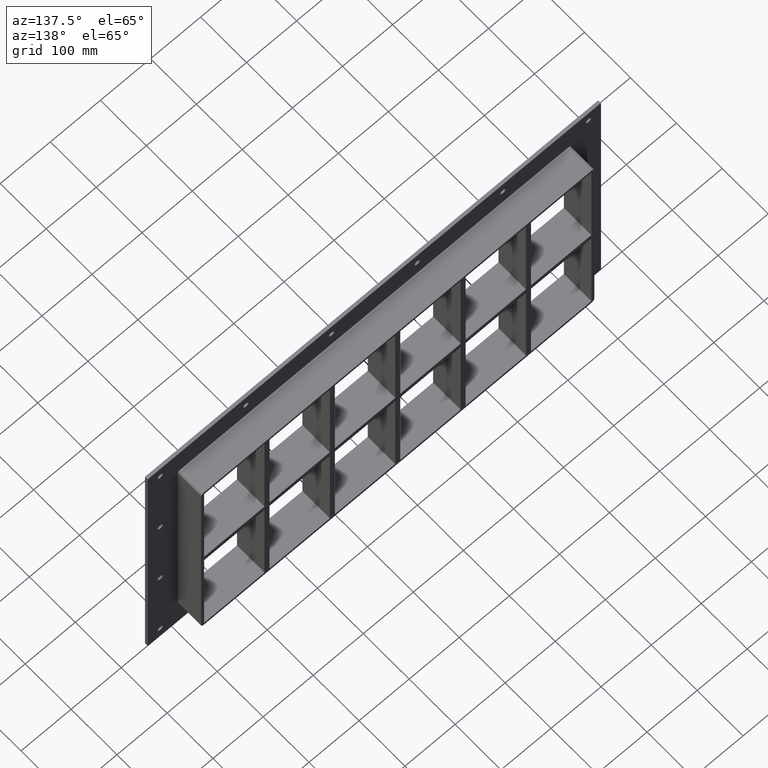
[diagram: clean part render]
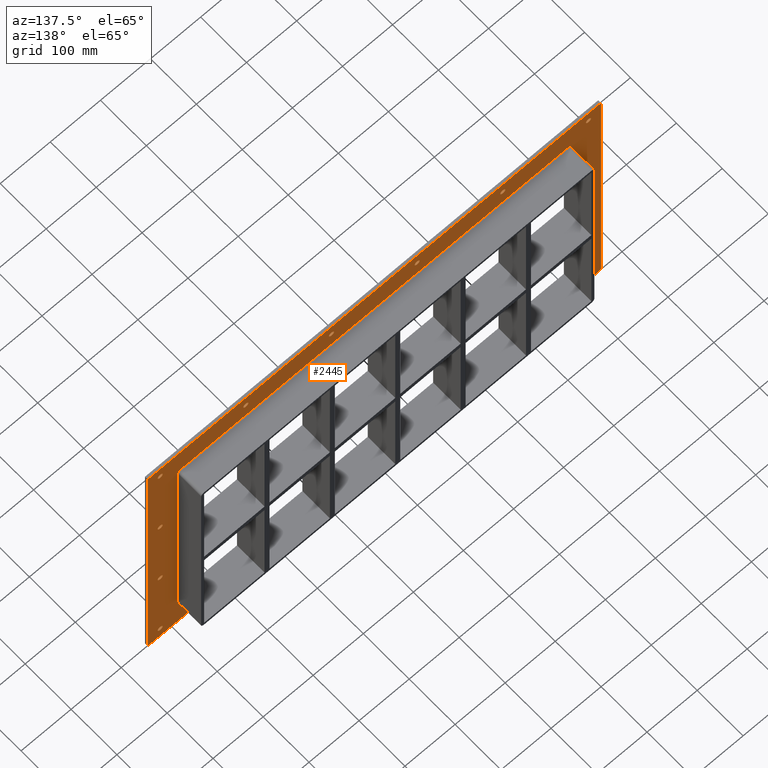
[diagram: same view with one face highlighted and labeled with its STEP entity id]
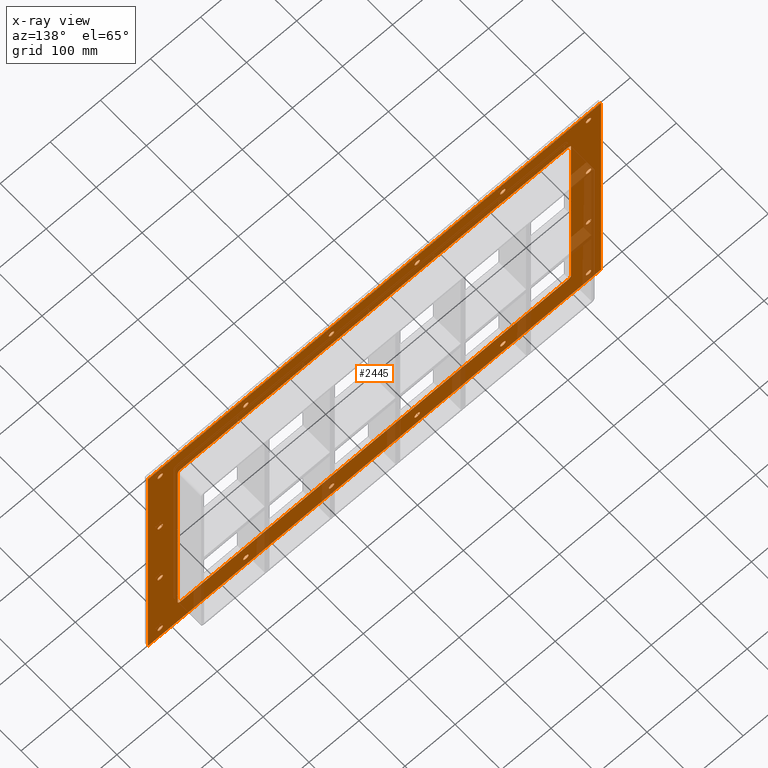
[diagram: x-ray of the same camera — body ghosted, the highlighted face saturated]
A machine part, auxiliary view. The second image highlights one B-rep face of the part: STEP entity #2445.
The next image is the same camera in x-ray: the body ghosted, the highlighted face saturated — about 13% of this face is hidden behind the body in this view.
In plain terms, the highlighted planar face has unit normal (0, 1, 0).
Its self-contained STEP definition (entity closure, byte-faithful):
#73=CARTESIAN_POINT('',(-432.75000000000011,5.999999999999943,-265.00000000000006));
#74=VERTEX_POINT('',#73);
#75=CARTESIAN_POINT('',(-427.50000000000011,5.999999999999943,-265.00000000000006));
#76=DIRECTION('',(0.0,-1.0,0.0));
#77=DIRECTION('',(1.0,0.0,0.0));
#78=AXIS2_PLACEMENT_3D('',#75,#76,#77);
#79=CIRCLE('',#78,5.25);
#80=EDGE_CURVE('',#74,#74,#79,.T.);
#101=CARTESIAN_POINT('',(422.24999999999989,5.999999999999943,-88.399999999999963));
#102=VERTEX_POINT('',#101);
#103=CARTESIAN_POINT('',(427.49999999999989,5.999999999999943,-88.399999999999963));
#104=DIRECTION('',(0.0,-1.0,0.0));
#105=DIRECTION('',(1.0,0.0,0.0));
#106=AXIS2_PLACEMENT_3D('',#103,#104,#105);
#107=CIRCLE('',#106,5.25);
#108=EDGE_CURVE('',#102,#102,#107,.T.);
#129=CARTESIAN_POINT('',(-432.75000000000011,5.999999999999943,-88.399999999999963));
#130=VERTEX_POINT('',#129);
#131=CARTESIAN_POINT('',(-427.50000000000011,5.999999999999943,-88.399999999999963));
#132=DIRECTION('',(0.0,-1.0,0.0));
#133=DIRECTION('',(1.0,0.0,0.0));
#134=AXIS2_PLACEMENT_3D('',#131,#132,#133);
#135=CIRCLE('',#134,5.25);
#136=EDGE_CURVE('',#130,#130,#135,.T.);
#157=CARTESIAN_POINT('',(422.24999999999989,5.999999999999943,88.200000000000045));
#158=VERTEX_POINT('',#157);
#159=CARTESIAN_POINT('',(427.49999999999989,5.999999999999943,88.200000000000045));
#160=DIRECTION('',(0.0,-1.0,0.0));
#161=DIRECTION('',(1.0,0.0,0.0));
#162=AXIS2_PLACEMENT_3D('',#159,#160,#161);
#163=CIRCLE('',#162,5.25);
#164=EDGE_CURVE('',#158,#158,#163,.T.);
#185=CARTESIAN_POINT('',(-432.75000000000011,5.999999999999943,88.200000000000045));
#186=VERTEX_POINT('',#185);
#187=CARTESIAN_POINT('',(-427.50000000000011,5.999999999999943,88.200000000000045));
#188=DIRECTION('',(0.0,-1.0,0.0));
#189=DIRECTION('',(1.0,0.0,0.0));
#190=AXIS2_PLACEMENT_3D('',#187,#188,#189);
#191=CIRCLE('',#190,5.25);
#192=EDGE_CURVE('',#186,#186,#191,.T.);
#213=CARTESIAN_POINT('',(-261.75000000000017,5.999999999999943,264.80000000000007));
#214=VERTEX_POINT('',#213);
#215=CARTESIAN_POINT('',(-256.50000000000023,5.999999999999943,264.80000000000007));
#216=DIRECTION('',(0.0,-1.0,0.0));
#217=DIRECTION('',(1.0,0.0,0.0));
#218=AXIS2_PLACEMENT_3D('',#215,#216,#217);
#219=CIRCLE('',#218,5.25);
#220=EDGE_CURVE('',#214,#214,#219,.T.);
#241=CARTESIAN_POINT('',(-261.75000000000023,5.999999999999943,-265.0));
#242=VERTEX_POINT('',#241);
#243=CARTESIAN_POINT('',(-256.50000000000028,5.999999999999943,-265.0));
#244=DIRECTION('',(0.0,-1.0,0.0));
#245=DIRECTION('',(1.0,0.0,0.0));
#246=AXIS2_PLACEMENT_3D('',#243,#244,#245);
#247=CIRCLE('',#246,5.25);
#248=EDGE_CURVE('',#242,#242,#247,.T.);
#269=CARTESIAN_POINT('',(-90.750000000000171,5.999999999999943,264.80000000000007));
#270=VERTEX_POINT('',#269);
#271=CARTESIAN_POINT('',(-85.500000000000185,5.999999999999943,264.80000000000007));
#272=DIRECTION('',(0.0,-1.0,0.0));
#273=DIRECTION('',(1.0,0.0,0.0));
#274=AXIS2_PLACEMENT_3D('',#271,#272,#273);
#275=CIRCLE('',#274,5.25);
#276=EDGE_CURVE('',#270,#270,#275,.T.);
#297=CARTESIAN_POINT('',(-90.750000000000242,5.999999999999943,-265.0));
#298=VERTEX_POINT('',#297);
#299=CARTESIAN_POINT('',(-85.500000000000256,5.999999999999943,-265.0));
#300=DIRECTION('',(0.0,-1.0,0.0));
#301=DIRECTION('',(1.0,0.0,0.0));
#302=AXIS2_PLACEMENT_3D('',#299,#300,#301);
#303=CIRCLE('',#302,5.25);
#304=EDGE_CURVE('',#298,#298,#303,.T.);
#325=CARTESIAN_POINT('',(80.249999999999844,5.999999999999943,264.80000000000007));
#326=VERTEX_POINT('',#325);
#327=CARTESIAN_POINT('',(85.499999999999829,5.999999999999943,264.80000000000007));
#328=DIRECTION('',(0.0,-1.0,0.0));
#329=DIRECTION('',(1.0,0.0,0.0));
#330=AXIS2_PLACEMENT_3D('',#327,#328,#329);
#331=CIRCLE('',#330,5.25);
#332=EDGE_CURVE('',#326,#326,#331,.T.);
#353=CARTESIAN_POINT('',(80.249999999999773,5.999999999999943,-265.0));
#354=VERTEX_POINT('',#353);
#355=CARTESIAN_POINT('',(85.499999999999758,5.999999999999943,-265.0));
#356=DIRECTION('',(0.0,-1.0,0.0));
#357=DIRECTION('',(1.0,0.0,0.0));
#358=AXIS2_PLACEMENT_3D('',#355,#356,#357);
#359=CIRCLE('',#358,5.25);
#360=EDGE_CURVE('',#354,#354,#359,.T.);
#381=CARTESIAN_POINT('',(251.24999999999986,5.999999999999943,264.80000000000007));
#382=VERTEX_POINT('',#381);
#383=CARTESIAN_POINT('',(256.49999999999983,5.999999999999943,264.80000000000007));
#384=DIRECTION('',(0.0,-1.0,0.0));
#385=DIRECTION('',(1.0,0.0,0.0));
#386=AXIS2_PLACEMENT_3D('',#383,#384,#385);
#387=CIRCLE('',#386,5.25);
#388=EDGE_CURVE('',#382,#382,#387,.T.);
#409=CARTESIAN_POINT('',(251.24999999999977,5.999999999999943,-265.0));
#410=VERTEX_POINT('',#409);
#411=CARTESIAN_POINT('',(256.49999999999977,5.999999999999943,-265.0));
#412=DIRECTION('',(0.0,-1.0,0.0));
#413=DIRECTION('',(1.0,0.0,0.0));
#414=AXIS2_PLACEMENT_3D('',#411,#412,#413);
#415=CIRCLE('',#414,5.25);
#416=EDGE_CURVE('',#410,#410,#415,.T.);
#437=CARTESIAN_POINT('',(422.24999999999977,5.999999999999943,-265.0));
#438=VERTEX_POINT('',#437);
#439=CARTESIAN_POINT('',(427.49999999999977,5.999999999999943,-265.0));
#440=DIRECTION('',(0.0,-1.0,0.0));
#441=DIRECTION('',(1.0,0.0,0.0));
#442=AXIS2_PLACEMENT_3D('',#439,#440,#441);
#443=CIRCLE('',#442,5.25);
#444=EDGE_CURVE('',#438,#438,#443,.T.);
#465=CARTESIAN_POINT('',(-432.75000000000011,5.999999999999943,264.80000000000007));
#466=VERTEX_POINT('',#465);
#467=CARTESIAN_POINT('',(-427.50000000000011,5.999999999999943,264.80000000000007));
#468=DIRECTION('',(0.0,-1.0,0.0));
#469=DIRECTION('',(1.0,0.0,0.0));
#470=AXIS2_PLACEMENT_3D('',#467,#468,#469);
#471=CIRCLE('',#470,5.25);
#472=EDGE_CURVE('',#466,#466,#471,.T.);
#493=CARTESIAN_POINT('',(422.24999999999989,5.999999999999943,264.80000000000007));
#494=VERTEX_POINT('',#493);
#495=CARTESIAN_POINT('',(427.49999999999989,5.999999999999943,264.80000000000007));
#496=DIRECTION('',(0.0,-1.0,0.0));
#497=DIRECTION('',(1.0,0.0,0.0));
#498=AXIS2_PLACEMENT_3D('',#495,#496,#497);
#499=CIRCLE('',#498,5.25);
#500=EDGE_CURVE('',#494,#494,#499,.T.);
#2288=CARTESIAN_POINT('',(-4.593408E-014,6.000000000000001,6.937959E-015));
#2289=DIRECTION('',(0.0,1.0,0.0));
#2290=DIRECTION('',(0.0,0.0,1.0));
#2291=AXIS2_PLACEMENT_3D('',#2288,#2289,#2290);
#2292=PLANE('',#2291);
#2293=CARTESIAN_POINT('',(-452.50000000000011,6.000000000000001,290.00000000000006));
#2294=VERTEX_POINT('',#2293);
#2295=CARTESIAN_POINT('',(452.50000000000011,6.000000000000001,290.00000000000006));
#2296=VERTEX_POINT('',#2295);
#2297=CARTESIAN_POINT('',(-452.50000000000011,6.000000000000001,290.00000000000006));
#2298=DIRECTION('',(1.0,0.0,0.0));
#2299=VECTOR('',#2298,905.00000000000023);
#2300=LINE('',#2297,#2299);
#2301=EDGE_CURVE('',#2294,#2296,#2300,.T.);
#2302=ORIENTED_EDGE('',*,*,#2301,.T.);
#2303=CARTESIAN_POINT('',(452.50000000000011,6.000000000000001,-290.00000000000006));
#2304=VERTEX_POINT('',#2303);
#2305=CARTESIAN_POINT('',(452.50000000000006,6.000000000000001,290.00000000000006));
#2306=DIRECTION('',(0.0,0.0,-1.0));
#2307=VECTOR('',#2306,580.00000000000011);
#2308=LINE('',#2305,#2307);
#2309=EDGE_CURVE('',#2296,#2304,#2308,.T.);
#2310=ORIENTED_EDGE('',*,*,#2309,.T.);
#2311=CARTESIAN_POINT('',(-452.50000000000011,6.000000000000001,-290.00000000000006));
#2312=VERTEX_POINT('',#2311);
#2313=CARTESIAN_POINT('',(452.50000000000006,6.000000000000001,-290.00000000000006));
#2314=DIRECTION('',(-1.0,0.0,0.0));
#2315=VECTOR('',#2314,905.00000000000023);
#2316=LINE('',#2313,#2315);
#2317=EDGE_CURVE('',#2304,#2312,#2316,.T.);
#2318=ORIENTED_EDGE('',*,*,#2317,.T.);
#2319=CARTESIAN_POINT('',(-452.50000000000011,6.000000000000001,-290.00000000000006));
#2320=DIRECTION('',(0.0,0.0,1.0));
#2321=VECTOR('',#2320,580.00000000000011);
#2322=LINE('',#2319,#2321);
#2323=EDGE_CURVE('',#2312,#2294,#2322,.T.);
#2324=ORIENTED_EDGE('',*,*,#2323,.T.);
#2325=EDGE_LOOP('',(#2302,#2310,#2318,#2324));
#2326=FACE_OUTER_BOUND('',#2325,.T.);
#2327=ORIENTED_EDGE('',*,*,#80,.T.);
#2328=EDGE_LOOP('',(#2327));
#2329=FACE_BOUND('',#2328,.T.);
#2330=ORIENTED_EDGE('',*,*,#108,.T.);
#2331=EDGE_LOOP('',(#2330));
#2332=FACE_BOUND('',#2331,.T.);
#2333=ORIENTED_EDGE('',*,*,#136,.T.);
#2334=EDGE_LOOP('',(#2333));
#2335=FACE_BOUND('',#2334,.T.);
#2336=ORIENTED_EDGE('',*,*,#164,.T.);
#2337=EDGE_LOOP('',(#2336));
#2338=FACE_BOUND('',#2337,.T.);
#2339=ORIENTED_EDGE('',*,*,#192,.T.);
#2340=EDGE_LOOP('',(#2339));
#2341=FACE_BOUND('',#2340,.T.);
#2342=ORIENTED_EDGE('',*,*,#220,.T.);
#2343=EDGE_LOOP('',(#2342));
#2344=FACE_BOUND('',#2343,.T.);
#2345=ORIENTED_EDGE('',*,*,#248,.T.);
#2346=EDGE_LOOP('',(#2345));
#2347=FACE_BOUND('',#2346,.T.);
#2348=ORIENTED_EDGE('',*,*,#276,.T.);
#2349=EDGE_LOOP('',(#2348));
#2350=FACE_BOUND('',#2349,.T.);
#2351=ORIENTED_EDGE('',*,*,#304,.T.);
#2352=EDGE_LOOP('',(#2351));
#2353=FACE_BOUND('',#2352,.T.);
#2354=ORIENTED_EDGE('',*,*,#332,.T.);
#2355=EDGE_LOOP('',(#2354));
#2356=FACE_BOUND('',#2355,.T.);
#2357=ORIENTED_EDGE('',*,*,#360,.T.);
#2358=EDGE_LOOP('',(#2357));
#2359=FACE_BOUND('',#2358,.T.);
#2360=ORIENTED_EDGE('',*,*,#388,.T.);
#2361=EDGE_LOOP('',(#2360));
#2362=FACE_BOUND('',#2361,.T.);
#2363=ORIENTED_EDGE('',*,*,#416,.T.);
#2364=EDGE_LOOP('',(#2363));
#2365=FACE_BOUND('',#2364,.T.);
#2366=ORIENTED_EDGE('',*,*,#444,.T.);
#2367=EDGE_LOOP('',(#2366));
#2368=FACE_BOUND('',#2367,.T.);
#2369=ORIENTED_EDGE('',*,*,#472,.T.);
#2370=EDGE_LOOP('',(#2369));
#2371=FACE_BOUND('',#2370,.T.);
#2372=ORIENTED_EDGE('',*,*,#500,.T.);
#2373=EDGE_LOOP('',(#2372));
#2374=FACE_BOUND('',#2373,.T.);
#2375=CARTESIAN_POINT('',(-386.50000000000006,6.000000000000001,-230.00000000000003));
#2376=VERTEX_POINT('',#2375);
#2377=CARTESIAN_POINT('',(-392.50000000000011,6.000000000000001,-224.00000000000003));
#2378=VERTEX_POINT('',#2377);
#2379=CARTESIAN_POINT('',(-386.50000000000006,6.000000000000001,-224.00000000000003));
#2380=DIRECTION('',(0.0,1.0,0.0));
#2381=DIRECTION('',(-0.707106781186552,0.0,-0.707106781186543));
#2382=AXIS2_PLACEMENT_3D('',#2379,#2380,#2381);
#2383=CIRCLE('',#2382,6.0);
#2384=EDGE_CURVE('',#2376,#2378,#2383,.T.);
#2385=ORIENTED_EDGE('',*,*,#2384,.F.);
#2386=CARTESIAN_POINT('',(386.50000000000006,6.000000000000001,-230.00000000000003));
#2387=VERTEX_POINT('',#2386);
#2388=CARTESIAN_POINT('',(386.50000000000006,6.000000000000001,-230.00000000000003));
#2389=DIRECTION('',(-1.0,0.0,0.0));
#2390=VECTOR('',#2389,773.0);
#2391=LINE('',#2388,#2390);
#2392=EDGE_CURVE('',#2387,#2376,#2391,.T.);
#2393=ORIENTED_EDGE('',*,*,#2392,.F.);
#2394=CARTESIAN_POINT('',(392.5,6.000000000000001,-224.00000000000003));
#2395=VERTEX_POINT('',#2394);
#2396=CARTESIAN_POINT('',(386.50000000000006,6.000000000000001,-224.00000000000003));
#2397=DIRECTION('',(0.0,1.0,0.0));
#2398=DIRECTION('',(0.707106781186543,0.0,-0.707106781186552));
#2399=AXIS2_PLACEMENT_3D('',#2396,#2397,#2398);
#2400=CIRCLE('',#2399,6.000000000000001);
#2401=EDGE_CURVE('',#2395,#2387,#2400,.T.);
#2402=ORIENTED_EDGE('',*,*,#2401,.F.);
#2403=CARTESIAN_POINT('',(392.5,6.000000000000001,224.00000000000003));
#2404=VERTEX_POINT('',#2403);
#2405=CARTESIAN_POINT('',(392.5,6.000000000000001,224.0));
#2406=DIRECTION('',(0.0,0.0,-1.0));
#2407=VECTOR('',#2406,448.00000000000006);
#2408=LINE('',#2405,#2407);
#2409=EDGE_CURVE('',#2404,#2395,#2408,.T.);
#2410=ORIENTED_EDGE('',*,*,#2409,.F.);
#2411=CARTESIAN_POINT('',(386.49999999999989,6.000000000000001,230.00000000000003));
#2412=VERTEX_POINT('',#2411);
#2413=CARTESIAN_POINT('',(386.49999999999989,6.000000000000001,224.00000000000003));
#2414=DIRECTION('',(0.0,1.0,0.0));
#2415=DIRECTION('',(0.707106781186552,0.0,0.707106781186543));
#2416=AXIS2_PLACEMENT_3D('',#2413,#2414,#2415);
#2417=CIRCLE('',#2416,6.0);
#2418=EDGE_CURVE('',#2412,#2404,#2417,.T.);
#2419=ORIENTED_EDGE('',*,*,#2418,.F.);
#2420=CARTESIAN_POINT('',(-386.50000000000023,6.000000000000001,230.00000000000003));
#2421=VERTEX_POINT('',#2420);
#2422=CARTESIAN_POINT('',(-386.50000000000023,6.000000000000001,230.00000000000003));
#2423=DIRECTION('',(1.0,0.0,0.0));
#2424=VECTOR('',#2423,773.00000000000011);
#2425=LINE('',#2422,#2424);
#2426=EDGE_CURVE('',#2421,#2412,#2425,.T.);
#2427=ORIENTED_EDGE('',*,*,#2426,.F.);
#2428=CARTESIAN_POINT('',(-392.50000000000011,6.000000000000001,224.00000000000003));
#2429=VERTEX_POINT('',#2428);
#2430=CARTESIAN_POINT('',(-386.50000000000023,6.000000000000001,224.00000000000003));
#2431=DIRECTION('',(0.0,1.0,0.0));
#2432=DIRECTION('',(-0.707106781186543,0.0,0.707106781186552));
#2433=AXIS2_PLACEMENT_3D('',#2430,#2431,#2432);
#2434=CIRCLE('',#2433,6.000000000000001);
#2435=EDGE_CURVE('',#2429,#2421,#2434,.T.);
#2436=ORIENTED_EDGE('',*,*,#2435,.F.);
#2437=CARTESIAN_POINT('',(-392.50000000000011,6.000000000000001,-224.0));
#2438=DIRECTION('',(0.0,0.0,1.0));
#2439=VECTOR('',#2438,448.00000000000006);
#2440=LINE('',#2437,#2439);
#2441=EDGE_CURVE('',#2378,#2429,#2440,.T.);
#2442=ORIENTED_EDGE('',*,*,#2441,.F.);
#2443=EDGE_LOOP('',(#2385,#2393,#2402,#2410,#2419,#2427,#2436,#2442));
#2444=FACE_BOUND('',#2443,.T.);
#2445=ADVANCED_FACE('',(#2326,#2329,#2332,#2335,#2338,#2341,#2344,#2347,#2350,#2353,#2356,#2359,#2362,#2365,#2368,#2371,#2374,#2444),#2292,.T.);